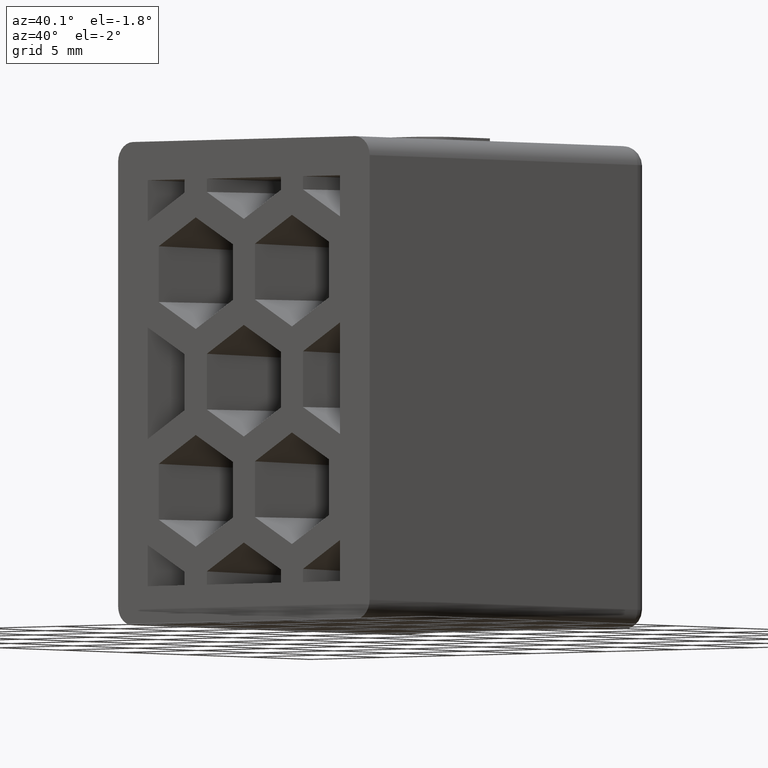
[diagram: clean part render]
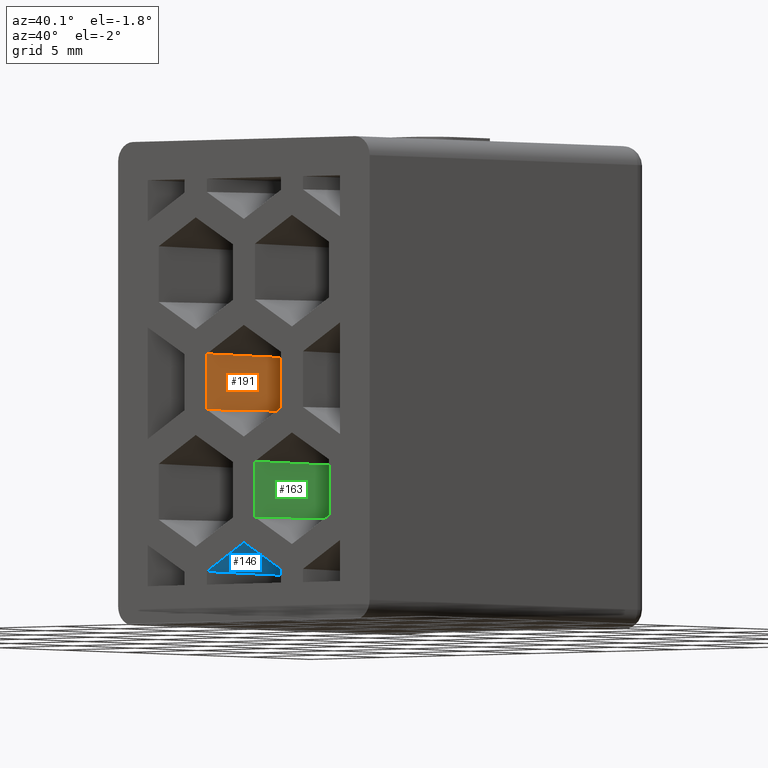
[diagram: same view with three faces highlighted in distinct colors, each labeled with its STEP entity id]
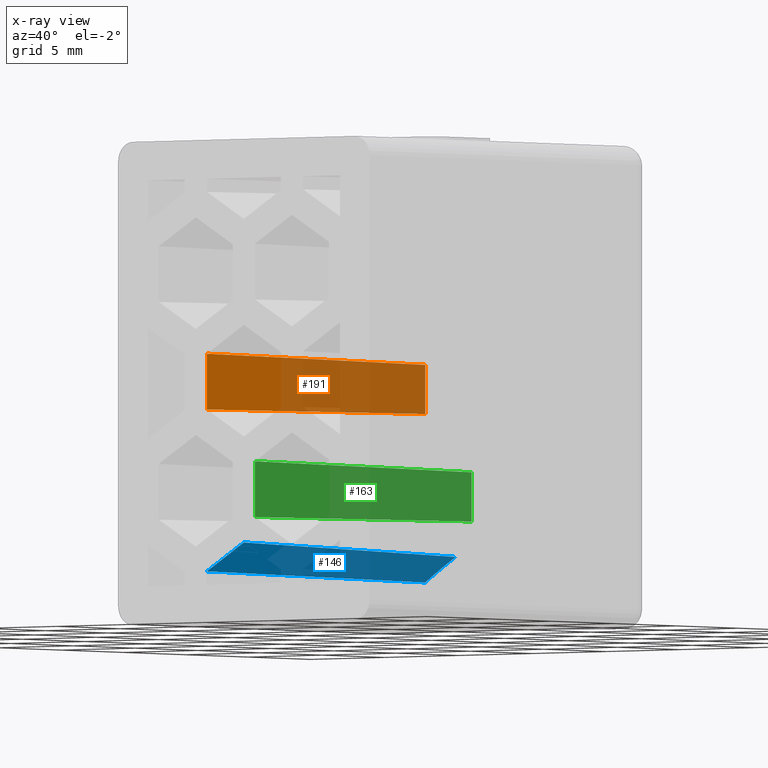
[diagram: x-ray of the same camera — body ghosted, the three highlighted faces saturated]
A machine part, auxiliary view with three faces highlighted in distinct colors.
The next image is the same camera in x-ray (body ghosted, the three faces saturated) — at least one of them is partly hidden behind the body in this view.
Their STEP definitions:

[orange] entity #191 — the highlighted planar face has unit normal (-0.9998, 0.0175, -0).
#191 = ADVANCED_FACE( '', ( #466 ), #467, .F. );
#466 = FACE_OUTER_BOUND( '', #764, .T. );
#467 = PLANE( '', #765 );
#764 = EDGE_LOOP( '', ( #1730, #1731, #1732, #1733 ) );
#765 = AXIS2_PLACEMENT_3D( '', #1734, #1735, #1736 );
#1730 = ORIENTED_EDGE( '', *, *, #2136, .T. );
#1731 = ORIENTED_EDGE( '', *, *, #2228, .T. );
#1732 = ORIENTED_EDGE( '', *, *, #1993, .T. );
#1733 = ORIENTED_EDGE( '', *, *, #2227, .F. );
#1734 = CARTESIAN_POINT( '', ( -2.50000000000000, 0.000000000000000, 1.44337567297406 ) );
#1735 = DIRECTION( '', ( -0.999847695156391, 0.0174524064372835, -1.11005393228102E-016 ) );
#1736 = DIRECTION( '', ( -0.0174524064372835, -0.999847695156391, 0.000000000000000 ) );
#1993 = EDGE_CURVE( '', #2419, #2417, #2420, .T. );
#2136 = EDGE_CURVE( '', #2644, #2642, #2645, .T. );
#2227 = EDGE_CURVE( '', #2644, #2417, #2777, .T. );
#2228 = EDGE_CURVE( '', #2642, #2419, #2778, .T. );
#2417 = VERTEX_POINT( '', #3054 );
#2419 = VERTEX_POINT( '', #3057 );
#2420 = LINE( '', #3058, #3059 );
#2642 = VERTEX_POINT( '', #3379 );
#2644 = VERTEX_POINT( '', #3381 );
#2645 = LINE( '', #3382, #3383 );
#2777 = LINE( '', #3581, #3582 );
#2778 = LINE( '', #3583, #3584 );
#3054 = CARTESIAN_POINT( '', ( -2.50000000000000, 0.000000000000000, -1.44337567297407 ) );
#3057 = CARTESIAN_POINT( '', ( -2.50000000000000, 0.000000000000000, 1.44337567297407 ) );
#3058 = CARTESIAN_POINT( '', ( -2.50000000000000, 0.000000000000000, 1.44337567297406 ) );
#3059 = VECTOR( '', #3701, 1000.00000000000 );
#3379 = CARTESIAN_POINT( '', ( -2.20030401543189, 17.1695714567997, 1.27034611560861 ) );
#3381 = CARTESIAN_POINT( '', ( -2.20030401543189, 17.1695714567997, -1.27034611560862 ) );
#3382 = CARTESIAN_POINT( '', ( -2.20030401543189, 17.1695714567997, -10.5000000000000 ) );
#3383 = VECTOR( '', #3932, 1000.00000000000 );
#3581 = CARTESIAN_POINT( '', ( -2.49949240738453, 0.0290799614642845, -1.44308261424089 ) );
#3582 = VECTOR( '', #4071, 1000.00000000000 );
#3583 = CARTESIAN_POINT( '', ( -2.49923861107680, 0.0436199421964267, 1.44293608487430 ) );
#3584 = VECTOR( '', #4072, 1000.00000000000 );
#3701 = DIRECTION( '', ( 1.11022302462516E-016, 0.000000000000000, -1.00000000000000 ) );
#3932 = DIRECTION( '', ( 0.000000000000000, 0.000000000000000, 1.00000000000000 ) );
#4071 = DIRECTION( '', ( -0.0174515205435363, -0.999796942337605, -0.0100756400835790 ) );
#4072 = DIRECTION( '', ( -0.0174515205435363, -0.999796942337605, 0.0100756400835790 ) );

[blue] entity #146 — the highlighted planar face has unit normal (-0.4999, 0.0175, 0.8659).
#146 = ADVANCED_FACE( '', ( #376 ), #377, .F. );
#376 = FACE_OUTER_BOUND( '', #674, .T. );
#377 = PLANE( '', #675 );
#674 = EDGE_LOOP( '', ( #1415, #1416, #1417, #1418 ) );
#675 = AXIS2_PLACEMENT_3D( '', #1419, #1420, #1421 );
#1415 = ORIENTED_EDGE( '', *, *, #2147, .T. );
#1416 = ORIENTED_EDGE( '', *, *, #2148, .T. );
#1417 = ORIENTED_EDGE( '', *, *, #1960, .T. );
#1418 = ORIENTED_EDGE( '', *, *, #2145, .F. );
#1419 = CARTESIAN_POINT( '', ( 6.12485699790260, 0.000000000000000, -4.83506081756484 ) );
#1420 = DIRECTION( '', ( -0.499923847578195, 0.0174524064372835, 0.865893503920754 ) );
#1421 = DIRECTION( '', ( 0.866025403784439, 0.000000000000000, 0.500000000000000 ) );
#1960 = EDGE_CURVE( '', #2353, #2351, #2354, .T. );
#2145 = EDGE_CURVE( '', #2658, #2351, #2660, .T. );
#2147 = EDGE_CURVE( '', #2658, #2662, #2663, .T. );
#2148 = EDGE_CURVE( '', #2662, #2353, #2664, .T. );
#2351 = VERTEX_POINT( '', #2955 );
#2353 = VERTEX_POINT( '', #2958 );
#2354 = LINE( '', #2959, #2960 );
#2658 = VERTEX_POINT( '', #3400 );
#2660 = LINE( '', #3403, #3404 );
#2662 = VERTEX_POINT( '', #3407 );
#2663 = ELLIPSE( '', #3408, 16.5840255585452, 14.3600000000000 );
#2664 = LINE( '', #3409, #3410 );
#2955 = CARTESIAN_POINT( '', ( -2.50000000000000, 0.000000000000000, -9.81462432702593 ) );
#2958 = CARTESIAN_POINT( '', ( -4.33680868994202E-016, 0.000000000000000, -8.37124865405187 ) );
#2959 = CARTESIAN_POINT( '', ( 1.25000000000000, 0.000000000000000, -7.64956081756484 ) );
#2960 = VECTOR( '', #3668, 1000.00000000000 );
#3400 = CARTESIAN_POINT( '', ( -2.20030401543189, 17.1695714567997, -9.98765388439138 ) );
#3403 = CARTESIAN_POINT( '', ( -2.49824883451136, 0.100324203653579, -9.81563536289220 ) );
#3404 = VECTOR( '', #3947, 1000.00000000000 );
#3407 = CARTESIAN_POINT( '', ( -9.38302183545679E-017, 17.0000000000000, -8.71388999284285 ) );
#3408 = AXIS2_PLACEMENT_3D( '', #3949, #3950, #3951 );
#3409 = CARTESIAN_POINT( '', ( 0.000000000000000, -0.0276242999928747, -8.37069187598524 ) );
#3410 = VECTOR( '', #3952, 1000.00000000000 );
#3668 = DIRECTION( '', ( -0.866025403784439, 0.000000000000000, -0.500000000000000 ) );
#3947 = DIRECTION( '', ( -0.0174515205435363, -0.999796942337605, 0.0100756400835790 ) );
#3949 = CARTESIAN_POINT( '', ( 0.000000000000000, 31.3600000000000, -9.00332114725688 ) );
#3950 = DIRECTION( '', ( -0.499923847578195, 0.0174524064372835, 0.865893503920754 ) );
#3951 = DIRECTION( '', ( 0.865366346075250, -0.0302100515148758, 0.500228387706894 ) );
#3952 = DIRECTION( '', ( 5.50935137850124E-018, -0.999796942337605, 0.0201512801671579 ) );

[green] entity #163 — the highlighted planar face has unit normal (-0.9998, 0.0175, 0).
#163 = ADVANCED_FACE( '', ( #410 ), #411, .F. );
#410 = FACE_OUTER_BOUND( '', #708, .T. );
#411 = PLANE( '', #709 );
#708 = EDGE_LOOP( '', ( #1534, #1535, #1536, #1537 ) );
#709 = AXIS2_PLACEMENT_3D( '', #1538, #1539, #1540 );
#1534 = ORIENTED_EDGE( '', *, *, #2177, .T. );
#1535 = ORIENTED_EDGE( '', *, *, #2000, .F. );
#1536 = ORIENTED_EDGE( '', *, *, #2178, .F. );
#1537 = ORIENTED_EDGE( '', *, *, #2053, .F. );
#1538 = CARTESIAN_POINT( '', ( 0.750000000000005, 0.000000000000000, 1.44337567297406 ) );
#1539 = DIRECTION( '', ( -0.999847695156391, 0.0174524064372835, 2.77513483070255E-016 ) );
#1540 = DIRECTION( '', ( -0.0174524064372835, -0.999847695156391, 0.000000000000000 ) );
#2000 = EDGE_CURVE( '', #2431, #2433, #2434, .F. );
#2053 = EDGE_CURVE( '', #2517, #2519, #2520, .F. );
#2177 = EDGE_CURVE( '', #2517, #2433, #2705, .T. );
#2178 = EDGE_CURVE( '', #2519, #2431, #2706, .T. );
#2431 = VERTEX_POINT( '', #3075 );
#2433 = VERTEX_POINT( '', #3078 );
#2434 = LINE( '', #3079, #3080 );
#2517 = VERTEX_POINT( '', #3192 );
#2519 = VERTEX_POINT( '', #3194 );
#2520 = LINE( '', #3195, #3196 );
#2705 = LINE( '', #3473, #3474 );
#2706 = LINE( '', #3475, #3476 );
#3075 = CARTESIAN_POINT( '', ( 0.750000000000002, 0.000000000000000, -7.07254079757292 ) );
#3078 = CARTESIAN_POINT( '', ( 0.750000000000003, 0.000000000000000, -4.18578945162479 ) );
#3079 = CARTESIAN_POINT( '', ( 0.750000000000004, 0.000000000000000, -1.29903810567666 ) );
#3080 = VECTOR( '', #3708, 1000.00000000000 );
#3192 = CARTESIAN_POINT( '', ( 1.04740374640582, 17.0382492204335, -4.35749558467019 ) );
#3194 = CARTESIAN_POINT( '', ( 1.04740374640582, 17.0382492204334, -6.90083466452751 ) );
#3195 = CARTESIAN_POINT( '', ( 1.04740374640582, 17.0382492204334, -10.5000000000000 ) );
#3196 = VECTOR( '', #3807, 1000.00000000000 );
#3473 = CARTESIAN_POINT( '', ( 0.750761388923207, 0.0436199421964267, -4.18622903972456 ) );
#3474 = VECTOR( '', #3993, 1000.00000000000 );
#3475 = CARTESIAN_POINT( '', ( 0.751497398215636, 0.0857858863196337, -7.07167627431004 ) );
#3476 = VECTOR( '', #3994, 1000.00000000000 );
#3708 = DIRECTION( '', ( -2.77555756156289E-016, 0.000000000000000, -1.00000000000000 ) );
#3807 = DIRECTION( '', ( 0.000000000000000, 0.000000000000000, 1.00000000000000 ) );
#3993 = DIRECTION( '', ( -0.0174515205435363, -0.999796942337605, 0.0100756400835790 ) );
#3994 = DIRECTION( '', ( -0.0174515205435363, -0.999796942337605, -0.0100756400835790 ) );